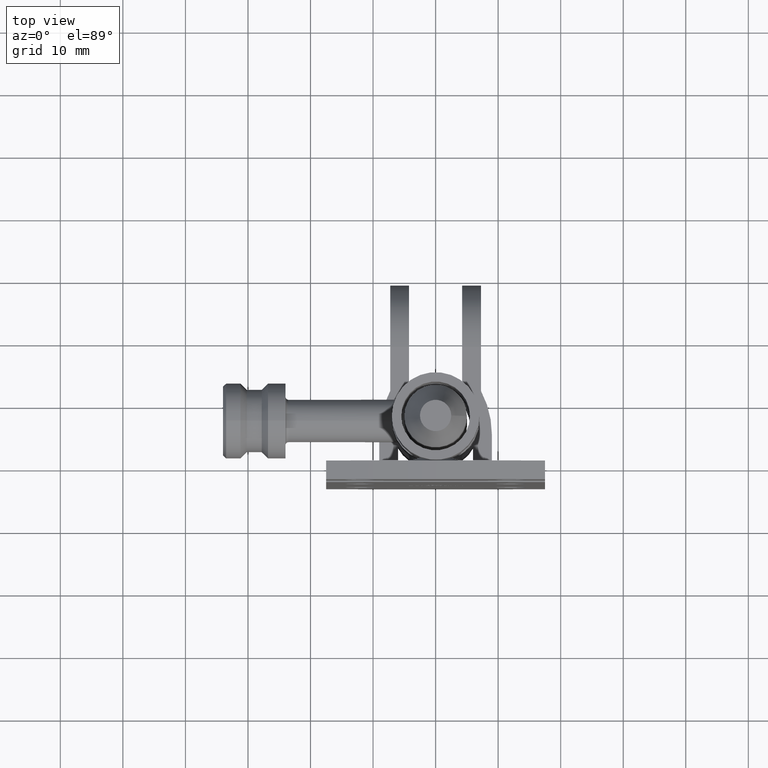
[diagram: clean part render]
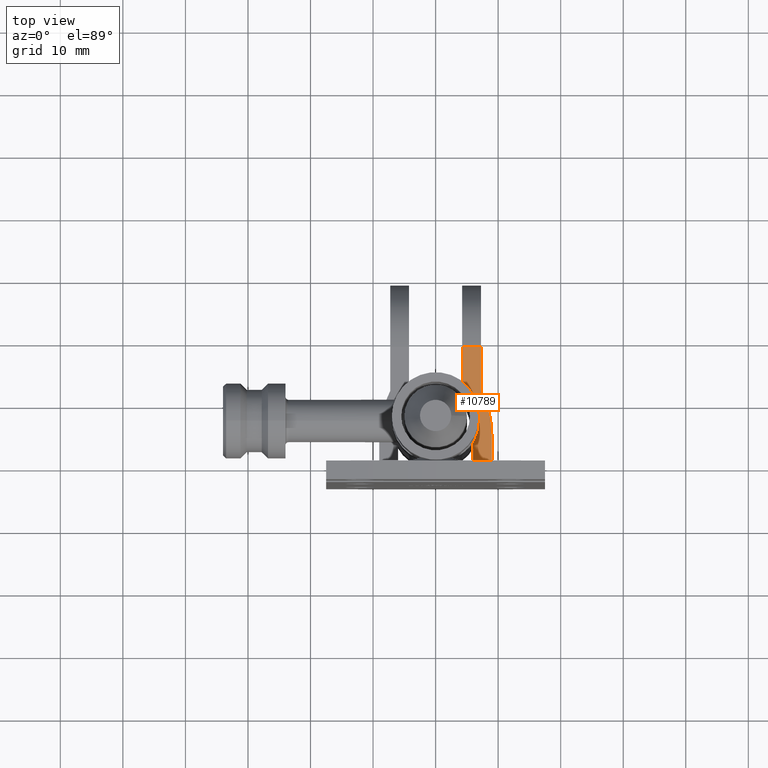
[diagram: same view with one face highlighted and labeled with its STEP entity id]
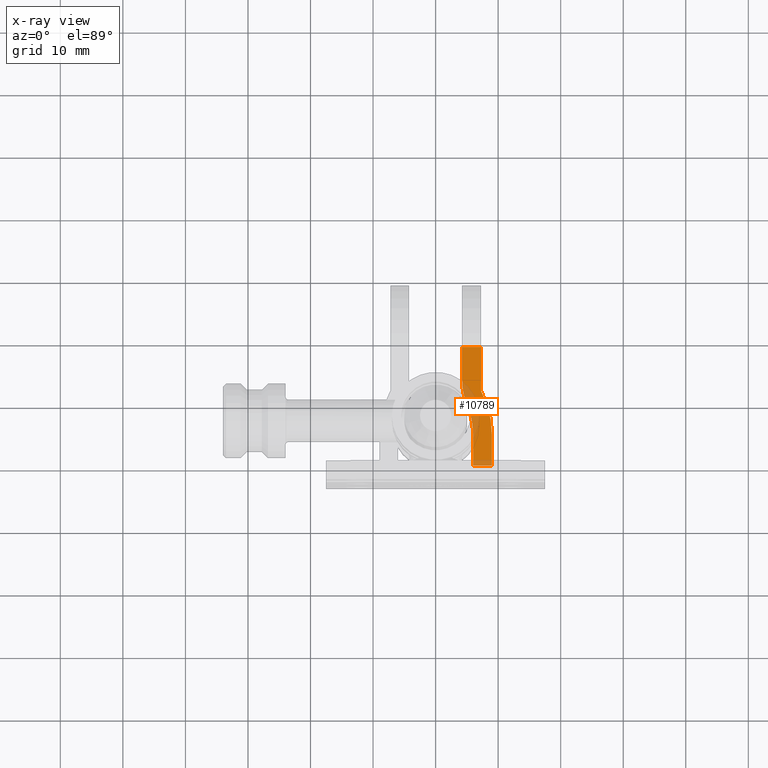
[diagram: x-ray of the same camera — body ghosted, the highlighted face saturated]
A machine part, top view. The second image highlights one B-rep face of the part: STEP entity #10789.
The next image is the same camera in x-ray: the body ghosted, the highlighted face saturated — about 24% of this face is hidden behind the body in this view.
In plain terms, the highlighted planar face has unit normal (0, 0, -1).
Its self-contained STEP definition (entity closure, byte-faithful):
#64 = DIRECTION ( 'NONE',  ( -1.000000000000000000, 0.000000000000000000, 0.000000000000000000 ) ) ;
#854 = EDGE_CURVE ( 'NONE', #4405, #14242, #11629, .T. ) ;
#882 = CARTESIAN_POINT ( 'NONE',  ( 9.000000000000000000, 0.000000000000000000, 10.00000000000000000 ) ) ;
#967 = ORIENTED_EDGE ( 'NONE', *, *, #5987, .F. ) ;
#1072 = DIRECTION ( 'NONE',  ( 1.000000000000000000, 0.000000000000000000, 0.000000000000000000 ) ) ;
#1119 = CIRCLE ( 'NONE', #4403, 14.87500000000000355 ) ;
#1191 = DIRECTION ( 'NONE',  ( -0.000000000000000000, 0.000000000000000000, 1.000000000000000000 ) ) ;
#1513 = ORIENTED_EDGE ( 'NONE', *, *, #10970, .T. ) ;
#1704 = LINE ( 'NONE', #9396, #3507 ) ;
#1727 = CARTESIAN_POINT ( 'NONE',  ( 7.249999999999999112, 19.00000000000000355, 10.00000000000000000 ) ) ;
#2121 = VERTEX_POINT ( 'NONE', #13578 ) ;
#2372 = DIRECTION ( 'NONE',  ( 1.000000000000000000, 0.000000000000000000, 0.000000000000000000 ) ) ;
#2394 = CARTESIAN_POINT ( 'NONE',  ( 4.250000000000000000, 19.00000000000000355, 10.00000000000000000 ) ) ;
#2526 = DIRECTION ( 'NONE',  ( 0.000000000000000000, -1.000000000000000000, -0.000000000000000000 ) ) ;
#2527 = FACE_OUTER_BOUND ( 'NONE', #6942, .T. ) ;
#3412 = CARTESIAN_POINT ( 'NONE',  ( 14.25000000000000000, 13.57321409974112925, 10.00000000000000000 ) ) ;
#3471 = LINE ( 'NONE', #13873, #6938 ) ;
#3507 = VECTOR ( 'NONE', #2526, 1000.000000000000000 ) ;
#3844 = AXIS2_PLACEMENT_3D ( 'NONE', #12606, #4541, #1072 ) ;
#3883 = AXIS2_PLACEMENT_3D ( 'NONE', #3412, #6882, #5853 ) ;
#3980 = CARTESIAN_POINT ( 'NONE',  ( 5.999999999999999112, 0.000000000000000000, 10.00000000000000000 ) ) ;
#4403 = AXIS2_PLACEMENT_3D ( 'NONE', #6346, #14506, #12328 ) ;
#4405 = VERTEX_POINT ( 'NONE', #15056 ) ;
#4541 = DIRECTION ( 'NONE',  ( 0.000000000000000000, 0.000000000000000000, -1.000000000000000000 ) ) ;
#4905 = CARTESIAN_POINT ( 'NONE',  ( 7.249999999999999112, 12.00000000000000000, 10.00000000000000000 ) ) ;
#5005 = ORIENTED_EDGE ( 'NONE', *, *, #854, .F. ) ;
#5624 = EDGE_CURVE ( 'NONE', #13298, #8547, #1704, .T. ) ;
#5853 = DIRECTION ( 'NONE',  ( 1.000000000000000000, 0.000000000000000000, 0.000000000000000000 ) ) ;
#5938 = ORIENTED_EDGE ( 'NONE', *, *, #8362, .F. ) ;
#5987 = EDGE_CURVE ( 'NONE', #7818, #13298, #1119, .T. ) ;
#6346 = CARTESIAN_POINT ( 'NONE',  ( -5.875000000000003553, 5.000000000000000000, 10.00000000000000000 ) ) ;
#6567 = DIRECTION ( 'NONE',  ( 0.000000000000000000, 1.000000000000000000, 0.000000000000000000 ) ) ;
#6882 = DIRECTION ( 'NONE',  ( -0.000000000000000000, -0.000000000000000000, -1.000000000000000000 ) ) ;
#6892 = CARTESIAN_POINT ( 'NONE',  ( 4.250000000000000000, 13.57321409974112925, 10.00000000000000000 ) ) ;
#6938 = VECTOR ( 'NONE', #64, 1000.000000000000000 ) ;
#6942 = EDGE_LOOP ( 'NONE', ( #10061, #1513, #5938, #5005, #14546, #9453, #14660, #12440, #967 ) ) ;
#7770 = PLANE ( 'NONE',  #3844 ) ;
#7818 = VERTEX_POINT ( 'NONE', #14703 ) ;
#7998 = VECTOR ( 'NONE', #13042, 1000.000000000000000 ) ;
#8056 = VERTEX_POINT ( 'NONE', #13244 ) ;
#8362 = EDGE_CURVE ( 'NONE', #14242, #8056, #14021, .T. ) ;
#8453 = CIRCLE ( 'NONE', #9962, 11.87500000000000355 ) ;
#8485 = LINE ( 'NONE', #3980, #14255 ) ;
#8547 = VERTEX_POINT ( 'NONE', #882 ) ;
#8852 = EDGE_CURVE ( 'NONE', #2121, #13264, #8485, .T. ) ;
#9312 = EDGE_CURVE ( 'NONE', #8547, #2121, #3471, .T. ) ;
#9396 = CARTESIAN_POINT ( 'NONE',  ( 9.000000000000000000, 0.000000000000000000, 10.00000000000000000 ) ) ;
#9453 = ORIENTED_EDGE ( 'NONE', *, *, #8852, .F. ) ;
#9536 = DIRECTION ( 'NONE',  ( -5.102127870520020612E-17, -1.000000000000000000, 0.000000000000000000 ) ) ;
#9739 = CARTESIAN_POINT ( 'NONE',  ( 9.000000000000000000, 5.000000000000000000, 10.00000000000000000 ) ) ;
#9962 = AXIS2_PLACEMENT_3D ( 'NONE', #12973, #1191, #2372 ) ;
#10061 = ORIENTED_EDGE ( 'NONE', *, *, #14494, .F. ) ;
#10273 = VERTEX_POINT ( 'NONE', #1727 ) ;
#10336 = DIRECTION ( 'NONE',  ( 0.000000000000000000, 1.000000000000000000, 0.000000000000000000 ) ) ;
#10789 = ADVANCED_FACE ( 'NONE', ( #2527 ), #7770, .F. ) ;
#10947 = VECTOR ( 'NONE', #10336, 1000.000000000000000 ) ;
#10970 = EDGE_CURVE ( 'NONE', #10273, #8056, #11104, .T. ) ;
#11104 = LINE ( 'NONE', #2394, #7998 ) ;
#11629 = CIRCLE ( 'NONE', #3883, 10.00000000000000000 ) ;
#12328 = DIRECTION ( 'NONE',  ( 1.000000000000000000, 0.000000000000000000, 0.000000000000000000 ) ) ;
#12440 = ORIENTED_EDGE ( 'NONE', *, *, #5624, .F. ) ;
#12606 = CARTESIAN_POINT ( 'NONE',  ( -5.875000000000003553, 5.000000000000000000, 10.00000000000000000 ) ) ;
#12973 = CARTESIAN_POINT ( 'NONE',  ( -5.875000000000003553, 5.000000000000000000, 10.00000000000000000 ) ) ;
#13042 = DIRECTION ( 'NONE',  ( -1.000000000000000000, -0.000000000000000000, -0.000000000000000000 ) ) ;
#13121 = VECTOR ( 'NONE', #9536, 1000.000000000000000 ) ;
#13244 = CARTESIAN_POINT ( 'NONE',  ( 4.250000000000000000, 19.00000000000000355, 10.00000000000000000 ) ) ;
#13264 = VERTEX_POINT ( 'NONE', #15101 ) ;
#13298 = VERTEX_POINT ( 'NONE', #9739 ) ;
#13320 = EDGE_CURVE ( 'NONE', #13264, #4405, #8453, .T. ) ;
#13578 = CARTESIAN_POINT ( 'NONE',  ( 5.999999999999999112, 0.000000000000000000, 10.00000000000000000 ) ) ;
#13873 = CARTESIAN_POINT ( 'NONE',  ( 9.000000000000000000, 0.000000000000000000, 10.00000000000000000 ) ) ;
#14021 = LINE ( 'NONE', #14404, #10947 ) ;
#14242 = VERTEX_POINT ( 'NONE', #6892 ) ;
#14255 = VECTOR ( 'NONE', #6567, 1000.000000000000000 ) ;
#14404 = CARTESIAN_POINT ( 'NONE',  ( 4.250000000000000000, 13.57321409974112925, 10.00000000000000000 ) ) ;
#14494 = EDGE_CURVE ( 'NONE', #10273, #7818, #14961, .T. ) ;
#14506 = DIRECTION ( 'NONE',  ( -0.000000000000000000, -0.000000000000000000, -1.000000000000000000 ) ) ;
#14546 = ORIENTED_EDGE ( 'NONE', *, *, #13320, .F. ) ;
#14660 = ORIENTED_EDGE ( 'NONE', *, *, #9312, .F. ) ;
#14703 = CARTESIAN_POINT ( 'NONE',  ( 7.249999999999999112, 12.00000000000000000, 10.00000000000000000 ) ) ;
#14961 = LINE ( 'NONE', #4905, #13121 ) ;
#15056 = CARTESIAN_POINT ( 'NONE',  ( 5.050000000000000711, 9.654030511288043570, 10.00000000000000000 ) ) ;
#15101 = CARTESIAN_POINT ( 'NONE',  ( 6.000000000000000000, 5.000000000000000000, 10.00000000000000000 ) ) ;